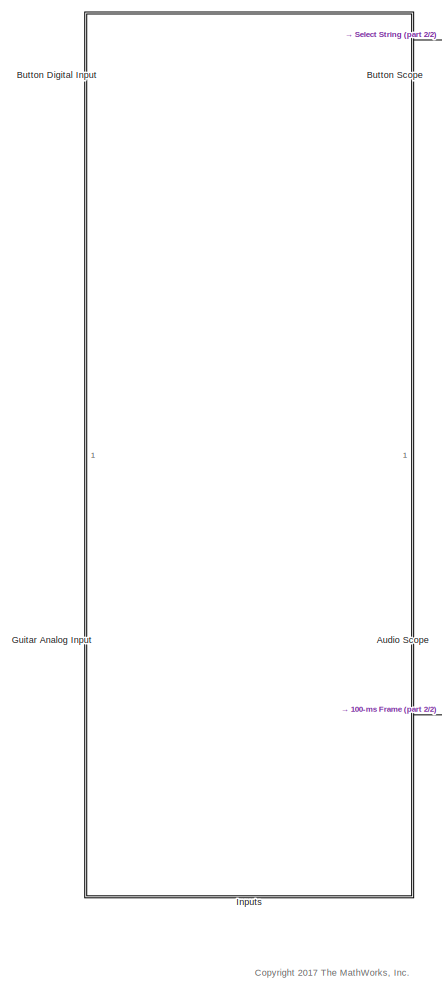
[diagram: root canvas - part 1/2, left side, full height]
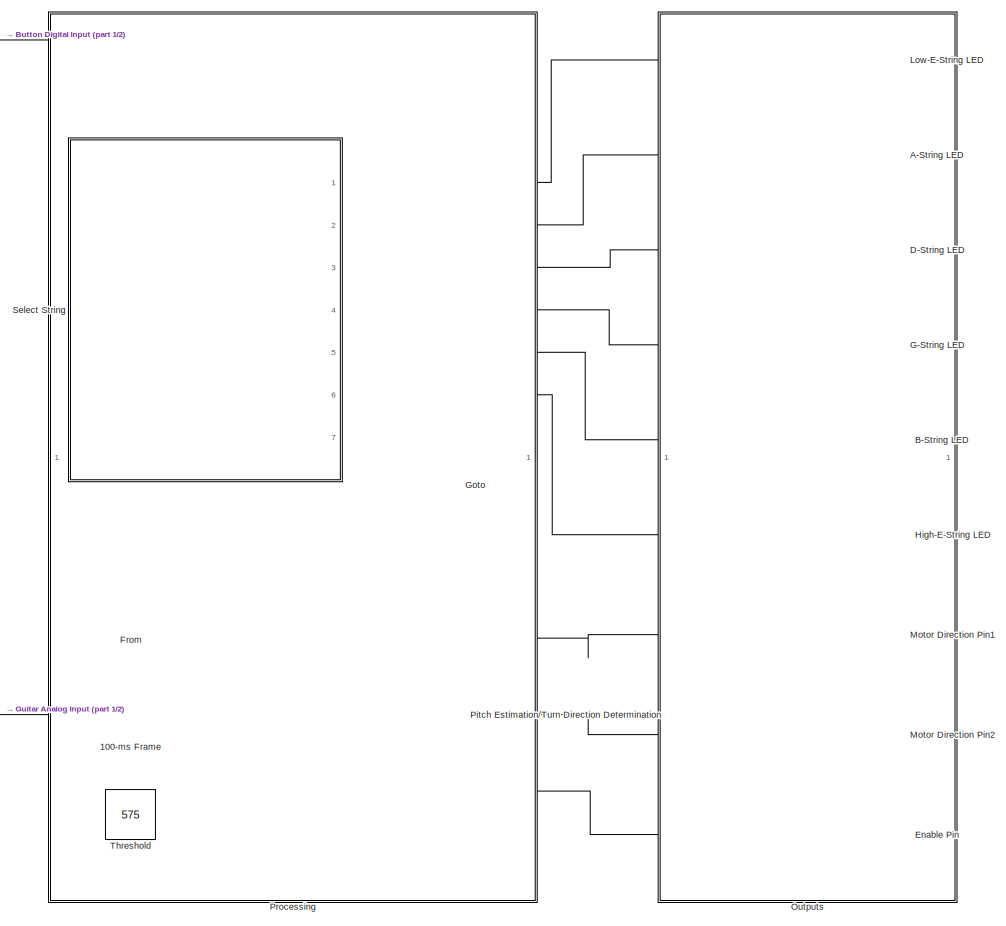
[diagram: root canvas - part 2/2, right side, full height]
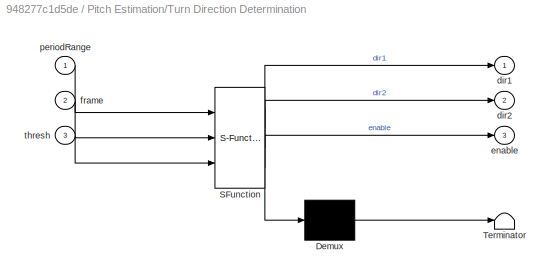
MODEL slx_948277c1d5de
KIND model
CONFIG AbsTol = auto
CONFIG EnableMultiTasking = on
CONFIG FixedStep = 0.0002
CONFIG MaxStep = auto
CONFIG MinStep = auto
CONFIG RelTol = 1e-3
CONFIG SampleTimeConstraint = Unconstrained
CONFIG Solver = FixedStepDiscrete
CONFIG SolverName = FixedStepDiscrete
CONFIG StartTime = 0.0
CONFIG StopTime = inf
BLOCK [Buffer] 100-ms Frame
  N = 500
  OutputFrames = off
BLOCK [Reference] A-String LED  REF=arduinolib/Digital Output
  Ports = [1]
  SourceBlock = arduinolib/Digital Output
  SourceProductBaseCode = ARDUINO
  SourceProductName = Simulink Support Package for Arduino Hardware
  SourceType = Arduino Digital Output
BLOCK [Scope] Audio Scope
  NumInputPorts = 1
  Ports = [1]
  ScopeSpecificationString = Simulink.scopes.TimeScopeBlockCfg('CurrentConfiguration', extmgr.ConfigurationSet(extmgr.Configuration('Core','General UI',true),extmgr.Configuration('Core','Source UI',true),extmgr.Configuration('Sources','WiredSimulink',true,'DataLoggingVariableName','ScopeData1'),extmgr.Configuration('Visuals','Time Domain',true,'SerializedDisplays',{struct('MinYLimReal','552.625','MaxYLimReal','556.375','YLabe...<+1405ch>
BLOCK [Reference] B-String LED  REF=arduinolib/Digital Output
  Ports = [1]
  SourceBlock = arduinolib/Digital Output
  SourceProductBaseCode = ARDUINO
  SourceProductName = Simulink Support Package for Arduino Hardware
  SourceType = Arduino Digital Output
BLOCK [Reference] Button Digital Input  REF=arduinolib/Digital Input
  Ports = [0, 1]
  SourceBlock = arduinolib/Digital Input
  SourceProductBaseCode = ARDUINO
  SourceProductName = Simulink Support Package for Arduino Hardware
  SourceType = Arduino Digital Input
BLOCK [Scope] Button Scope
  NumInputPorts = 1
  Ports = [1]
  ScopeSpecificationString = Simulink.scopes.TimeScopeBlockCfg('CurrentConfiguration', extmgr.ConfigurationSet(extmgr.Configuration('Core','General UI',true),extmgr.Configuration('Core','Source UI',true),extmgr.Configuration('Sources','WiredSimulink',true),extmgr.Configuration('Visuals','Time Domain',true,'SerializedDisplays',{struct('MinYLimReal','0.9','MaxYLimReal','1.1','YLabelReal','','MinYLimMag','0.9','MaxYLimMag','1.1'...<+1335ch>
BLOCK [Reference] D-String LED  REF=arduinolib/Digital Output
  Ports = [1]
  SourceBlock = arduinolib/Digital Output
  SourceProductBaseCode = ARDUINO
  SourceProductName = Simulink Support Package for Arduino Hardware
  SourceType = Arduino Digital Output
BLOCK [Reference] Enable Pin  REF=arduinolib/Digital Output
  Ports = [1]
  SourceBlock = arduinolib/Digital Output
  SourceProductBaseCode = ARDUINO
  SourceProductName = Simulink Support Package for Arduino Hardware
  SourceType = Arduino Digital Output
BLOCK [From] From
  GotoTag = range
BLOCK [Reference] G-String LED  REF=arduinolib/Digital Output
  Ports = [1]
  SourceBlock = arduinolib/Digital Output
  SourceProductBaseCode = ARDUINO
  SourceProductName = Simulink Support Package for Arduino Hardware
  SourceType = Arduino Digital Output
BLOCK [Goto] Goto
  GotoTag = range
BLOCK [Reference] Guitar Analog Input  REF=arduinolib/Analog Input
  Ports = [0, 1]
  SourceBlock = arduinolib/Analog Input
  SourceProductBaseCode = ARDUINO
  SourceProductName = Simulink Support Package for Arduino Hardware
  SourceType = Arduino Analog Input
BLOCK [Reference] High-E-String LED  REF=arduinolib/Digital Output
  Ports = [1]
  SourceBlock = arduinolib/Digital Output
  SourceProductBaseCode = ARDUINO
  SourceProductName = Simulink Support Package for Arduino Hardware
  SourceType = Arduino Digital Output
BLOCK [SubSystem] Inputs
  Ports = []
  RequestExecContextInheritance = off
  Variant = off
BLOCK [Reference] Low-E-String LED  REF=arduinolib/Digital Output
  Ports = [1]
  SourceBlock = arduinolib/Digital Output
  SourceProductBaseCode = ARDUINO
  SourceProductName = Simulink Support Package for Arduino Hardware
  SourceType = Arduino Digital Output
BLOCK [Reference] Motor Direction Pin1  REF=arduinolib/Digital Output
  Ports = [1]
  SourceBlock = arduinolib/Digital Output
  SourceProductBaseCode = ARDUINO
  SourceProductName = Simulink Support Package for Arduino Hardware
  SourceType = Arduino Digital Output
BLOCK [Reference] Motor Direction Pin2  REF=arduinolib/Digital Output
  Ports = [1]
  SourceBlock = arduinolib/Digital Output
  SourceProductBaseCode = ARDUINO
  SourceProductName = Simulink Support Package for Arduino Hardware
  SourceType = Arduino Digital Output
BLOCK [SubSystem] Outputs
  Ports = []
  RequestExecContextInheritance = off
  Variant = off
BLOCK [SubSystem] Pitch Estimation//Turn Direction Determination
  ErrorFcn = Stateflow.Translate.translate
  PermitHierarchicalResolution = ExplicitOnly
  Ports = [3, 3]
  RequestExecContextInheritance = off
  SFBlockType = MATLAB Function
  TreatAsAtomicUnit = on
  Variant = off
BLOCK [Demux] Pitch Estimation//Turn Direction Determination/ Demux 
  Outputs = 1
  Ports = [1, 1]
BLOCK [S-Function] Pitch Estimation//Turn Direction Determination/ SFunction 
  EnableBusSupport = on
  FunctionName = sf_sfun
  PortCounts = [3 4]
  Ports = [3, 4]
  SFcnIsStateOwnerBlock = off
  SFunctionDeploymentMode = off
  Tag = Stateflow S-Function AutomaticGuitarTuner 3
BLOCK [Terminator] Pitch Estimation//Turn Direction Determination/ Terminator 
BLOCK [Outport] Pitch Estimation//Turn Direction Determination/dir1
  IconDisplay = Port number
BLOCK [Outport] Pitch Estimation//Turn Direction Determination/dir2
  IconDisplay = Port number
  Port = 2
BLOCK [Outport] Pitch Estimation//Turn Direction Determination/enable
  IconDisplay = Port number
  Port = 3
BLOCK [Inport] Pitch Estimation//Turn Direction Determination/frame
  IconDisplay = Port number
  Port = 2
BLOCK [Inport] Pitch Estimation//Turn Direction Determination/periodRange
  IconDisplay = Port number
BLOCK [Inport] Pitch Estimation//Turn Direction Determination/thresh
  IconDisplay = Port number
  Port = 3
BLOCK [SubSystem] Processing
  Ports = []
  RequestExecContextInheritance = off
  Variant = off
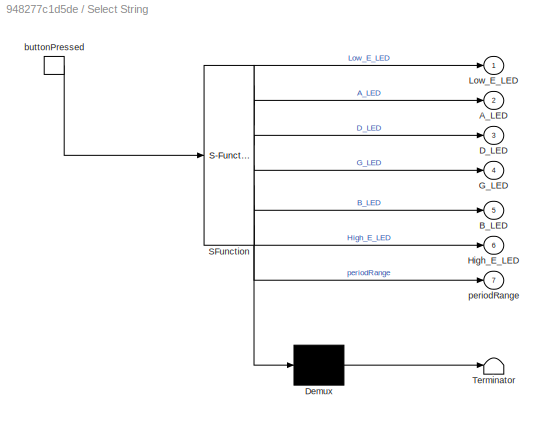
BLOCK [SubSystem] Select String
  ErrorFcn = Stateflow.Translate.translate
  PermitHierarchicalResolution = ExplicitOnly
  Ports = [0, 7, 0, 1]
  RequestExecContextInheritance = off
  SFBlockType = Chart
  TreatAsAtomicUnit = on
  Variant = off
BLOCK [Demux] Select String/ Demux 
  Outputs = 1
  Ports = [1, 1]
BLOCK [S-Function] Select String/ SFunction 
  EnableBusSupport = on
  FunctionName = sf_sfun
  PortCounts = [1 8]
  Ports = [1, 8]
  SFcnIsStateOwnerBlock = off
  SFunctionDeploymentMode = off
  Tag = Stateflow S-Function AutomaticGuitarTuner 4
BLOCK [Terminator] Select String/ Terminator 
BLOCK [Outport] Select String/A_LED
  IconDisplay = Port number
  Port = 2
BLOCK [Outport] Select String/B_LED
  IconDisplay = Port number
  Port = 5
BLOCK [Outport] Select String/D_LED
  IconDisplay = Port number
  Port = 3
BLOCK [Outport] Select String/G_LED
  IconDisplay = Port number
  Port = 4
BLOCK [Outport] Select String/High_E_LED
  IconDisplay = Port number
  Port = 6
BLOCK [Outport] Select String/Low_E_LED
  IconDisplay = Port number
BLOCK [TriggerPort] Select String/buttonPressed
  Ports = [0, 1]
  ShowOutputPort = on
  StatesWhenEnabling = held
  VariantControl = Variant
BLOCK [Outport] Select String/periodRange
  IconDisplay = Port number
  Port = 7
BLOCK [Constant] Threshold
  Value = 575
ANNOTATION (root): <copyright redacted>
LINE 100-ms Frame:1 -> Pitch Estimation//Turn Direction Determination:2
NET Button Digital Input:1 -> Button Scope:1, Select String:trigger
LINE From:1 -> Pitch Estimation//Turn Direction Determination:1
NET Guitar Analog Input:1 -> 100-ms Frame:1, Audio Scope:1
LINE Pitch Estimation//Turn Direction Determination:1 -> Motor Direction Pin1:1
LINE Pitch Estimation//Turn Direction Determination:2 -> Motor Direction Pin2:1
LINE Pitch Estimation//Turn Direction Determination:3 -> Enable Pin:1
LINE Select String:1 -> Low-E-String LED:1
LINE Select String:2 -> A-String LED:1
LINE Select String:3 -> D-String LED:1
LINE Select String:4 -> G-String LED:1
LINE Select String:5 -> B-String LED:1
LINE Select String:6 -> High-E-String LED:1
LINE Select String:7 -> Goto:1
LINE Threshold:1 -> Pitch Estimation//Turn Direction Determination:3
note: NET lines group one-source signal fan-out (src -> all destinations, sorted); 1:1 wires keep LINE
CHART Pitch Estimation//Turn Direction Determination states=1 transitions=1
  STATE_LABEL 'eML_blk_kernel()'
  STATE_LABEL 'SCRIPT:\nfunction [dir1, dir2, enable] = getTurnDirection(periodRange, frame, thresh)    \n    %% Initialization \n    sampleRate = 5000;\n    L = length(frame) * 0.3;\n    %% Check if frame is valid based on threshold\n    startOfFrame = frame(1:L);\n    endOfFrame = frame((length(frame) - L):length(frame));          \n    isValid = (max(startOfFrame) > thresh) && (max(endOfFrame) > thresh);\n    if isVal...<+1674ch>'
CHART Select String states=6 transitions=7
  STATE_LABEL 'Low_E\nen: Low_E_LED = 1; periodRange = [12.065e-3, 12.205e-3];\nex: Low_E_LED = 0;'
  STATE_LABEL 'A\nen: A_LED = 1; periodRange = [9.0385e-3, 9.1436e-3];\nex: A_LED = 0;'
  STATE_LABEL 'D\nen: D_LED = 1; periodRange = [6.7713e-3, 6.8499e-3];\nex: D_LED = 0;'
  STATE_LABEL 'G\nen: G_LED = 1; periodRange = [5.0727e-3, 5.1317e-3];\nex: G_LED = 0;'
  STATE_LABEL 'B\nen: B_LED = 1; periodRange = [4.0262e-3, 4.073e-3];\nex: B_LED = 0;'
  STATE_LABEL 'High_E\nen: High_E_LED = 1; periodRange = [3.0163e-3, 3.0513e-3];\nex: High_E_LED = 0;'
